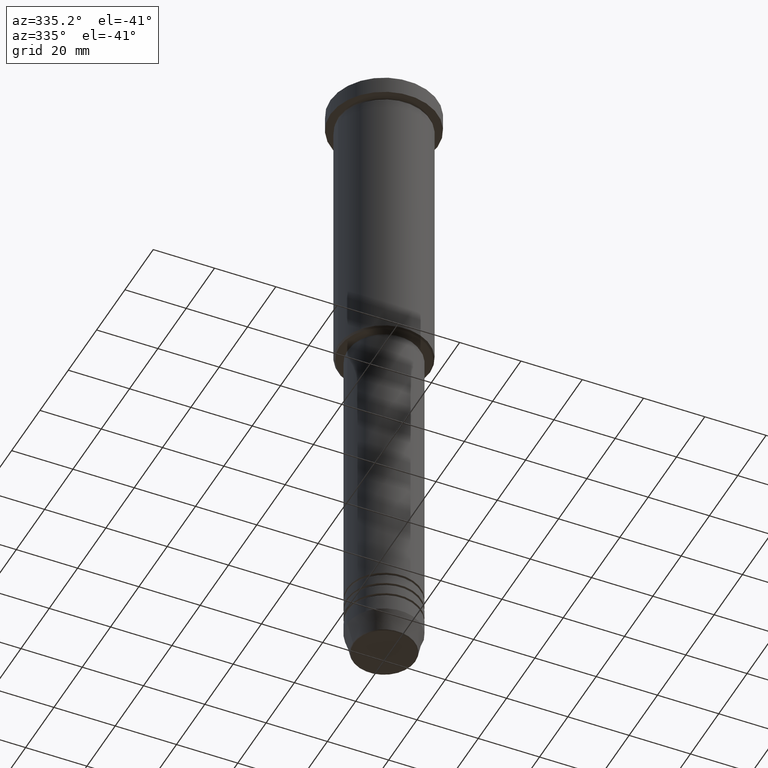
[diagram: clean part render]
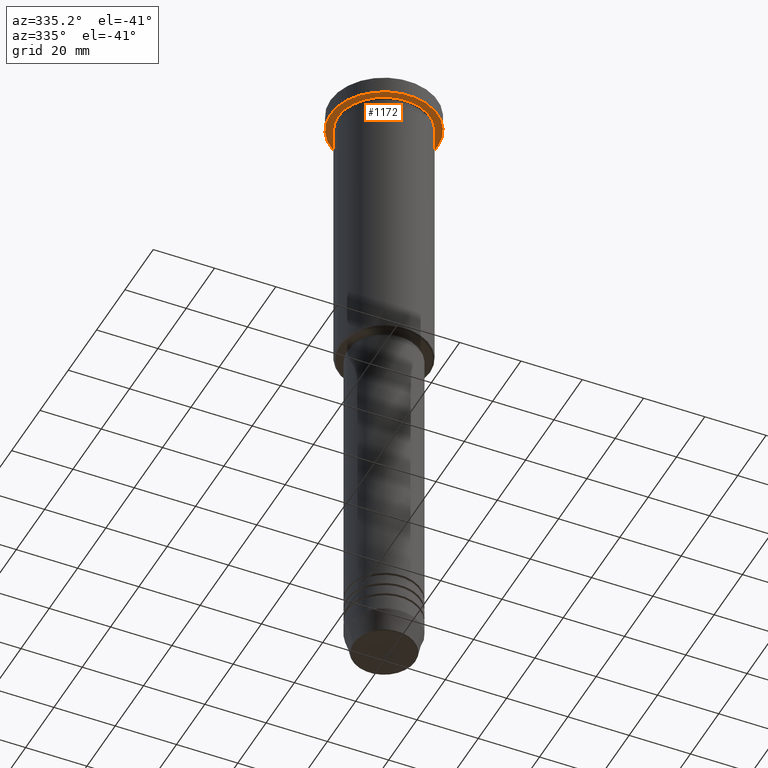
[diagram: same view with one face highlighted and labeled with its STEP entity id]
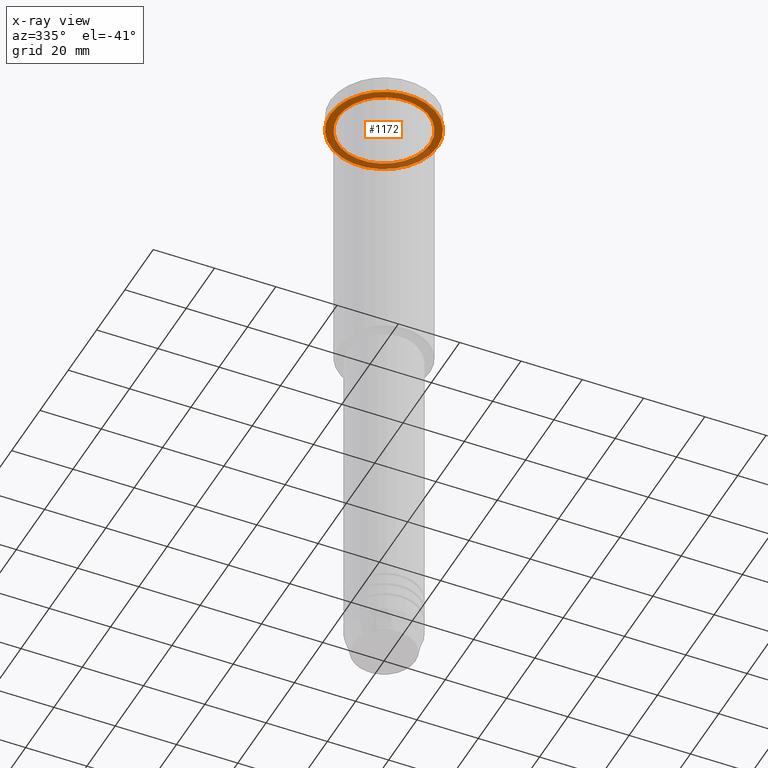
[diagram: x-ray of the same camera — body ghosted, the highlighted face saturated]
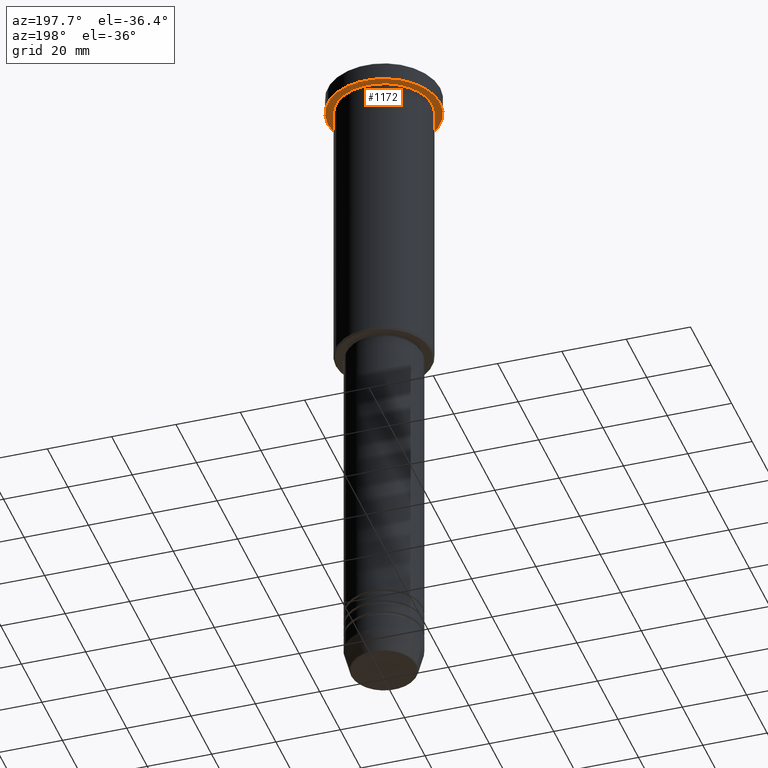
[diagram: same view with one face highlighted and labeled with its STEP entity id]
A machine part, auxiliary view. The second image highlights one B-rep face of the part: STEP entity #1172.
The next image is the same camera in x-ray: the body ghosted, the highlighted face saturated — about 31% of this face is hidden behind the body in this view.
A second angle (auxiliary view) of the same face is appended — the face is thin or edge-on in the first view.
In plain terms, the highlighted planar face has unit normal (0, 0, -1).
Its self-contained STEP definition (entity closure, byte-faithful):
#11 = CARTESIAN_POINT ( 'NONE',  ( 0.000000000000000000, 17.50000000000000000, -5.999999999999995559 ) ) ;
#20 = FACE_OUTER_BOUND ( 'NONE', #1157, .T. ) ;
#40 = CARTESIAN_POINT ( 'NONE',  ( 17.50000000000000000, 0.000000000000000000, -5.999999999999995559 ) ) ;
#130 = FACE_BOUND ( 'NONE', #391, .T. ) ;
#166 = ORIENTED_EDGE ( 'NONE', *, *, #602, .T. ) ;
#174 = ORIENTED_EDGE ( 'NONE', *, *, #557, .T. ) ;
#190 = DIRECTION ( 'NONE',  ( 1.000000000000000000, 0.000000000000000000, 0.000000000000000000 ) ) ;
#195 = ORIENTED_EDGE ( 'NONE', *, *, #374, .F. ) ;
#203 = DIRECTION ( 'NONE',  ( -0.000000000000000000, -0.000000000000000000, 1.000000000000000000 ) ) ;
#241 = VERTEX_POINT ( 'NONE', #40 ) ;
#302 = VERTEX_POINT ( 'NONE', #620 ) ;
#326 = CIRCLE ( 'NONE', #514, 15.00000000000000000 ) ;
#347 = AXIS2_PLACEMENT_3D ( 'NONE', #11, #656, #1117 ) ;
#351 = VERTEX_POINT ( 'NONE', #546 ) ;
#361 = CARTESIAN_POINT ( 'NONE',  ( -15.00000000000000000, 0.000000000000000000, -5.999999999999994671 ) ) ;
#374 = EDGE_CURVE ( 'NONE', #302, #241, #649, .T. ) ;
#391 = EDGE_LOOP ( 'NONE', ( #166, #174 ) ) ;
#434 = DIRECTION ( 'NONE',  ( -1.000000000000000000, 0.000000000000000000, 0.000000000000000000 ) ) ;
#468 = PLANE ( 'NONE',  #347 ) ;
#496 = AXIS2_PLACEMENT_3D ( 'NONE', #1096, #203, #644 ) ;
#514 = AXIS2_PLACEMENT_3D ( 'NONE', #613, #982, #434 ) ;
#546 = CARTESIAN_POINT ( 'NONE',  ( 15.00000000000000000, 1.836970198721029589E-15, -5.999999999999994671 ) ) ;
#557 = EDGE_CURVE ( 'NONE', #351, #701, #326, .T. ) ;
#561 = DIRECTION ( 'NONE',  ( -0.000000000000000000, -0.000000000000000000, 1.000000000000000000 ) ) ;
#592 = CIRCLE ( 'NONE', #960, 15.00000000000000000 ) ;
#602 = EDGE_CURVE ( 'NONE', #701, #351, #592, .T. ) ;
#613 = CARTESIAN_POINT ( 'NONE',  ( 0.000000000000000000, 0.000000000000000000, -5.999999999999995559 ) ) ;
#620 = CARTESIAN_POINT ( 'NONE',  ( -17.50000000000000000, 2.143131898507868248E-15, -5.999999999999995559 ) ) ;
#644 = DIRECTION ( 'NONE',  ( 1.000000000000000000, 0.000000000000000000, 0.000000000000000000 ) ) ;
#649 = CIRCLE ( 'NONE', #958, 17.50000000000000000 ) ;
#656 = DIRECTION ( 'NONE',  ( 0.000000000000000000, 0.000000000000000000, -1.000000000000000000 ) ) ;
#699 = CARTESIAN_POINT ( 'NONE',  ( 0.000000000000000000, 0.000000000000000000, -5.999999999999995559 ) ) ;
#701 = VERTEX_POINT ( 'NONE', #361 ) ;
#718 = EDGE_CURVE ( 'NONE', #241, #302, #1015, .T. ) ;
#905 = DIRECTION ( 'NONE',  ( -1.000000000000000000, 0.000000000000000000, 0.000000000000000000 ) ) ;
#958 = AXIS2_PLACEMENT_3D ( 'NONE', #1106, #561, #190 ) ;
#960 = AXIS2_PLACEMENT_3D ( 'NONE', #699, #1137, #905 ) ;
#982 = DIRECTION ( 'NONE',  ( -0.000000000000000000, -0.000000000000000000, 1.000000000000000000 ) ) ;
#1015 = CIRCLE ( 'NONE', #496, 17.50000000000000000 ) ;
#1096 = CARTESIAN_POINT ( 'NONE',  ( 0.000000000000000000, 0.000000000000000000, -5.999999999999995559 ) ) ;
#1106 = CARTESIAN_POINT ( 'NONE',  ( 0.000000000000000000, 0.000000000000000000, -5.999999999999995559 ) ) ;
#1111 = ORIENTED_EDGE ( 'NONE', *, *, #718, .F. ) ;
#1117 = DIRECTION ( 'NONE',  ( -1.000000000000000000, 0.000000000000000000, -0.000000000000000000 ) ) ;
#1137 = DIRECTION ( 'NONE',  ( -0.000000000000000000, -0.000000000000000000, 1.000000000000000000 ) ) ;
#1157 = EDGE_LOOP ( 'NONE', ( #1111, #195 ) ) ;
#1172 = ADVANCED_FACE ( 'NONE', ( #130, #20 ), #468, .T. ) ;